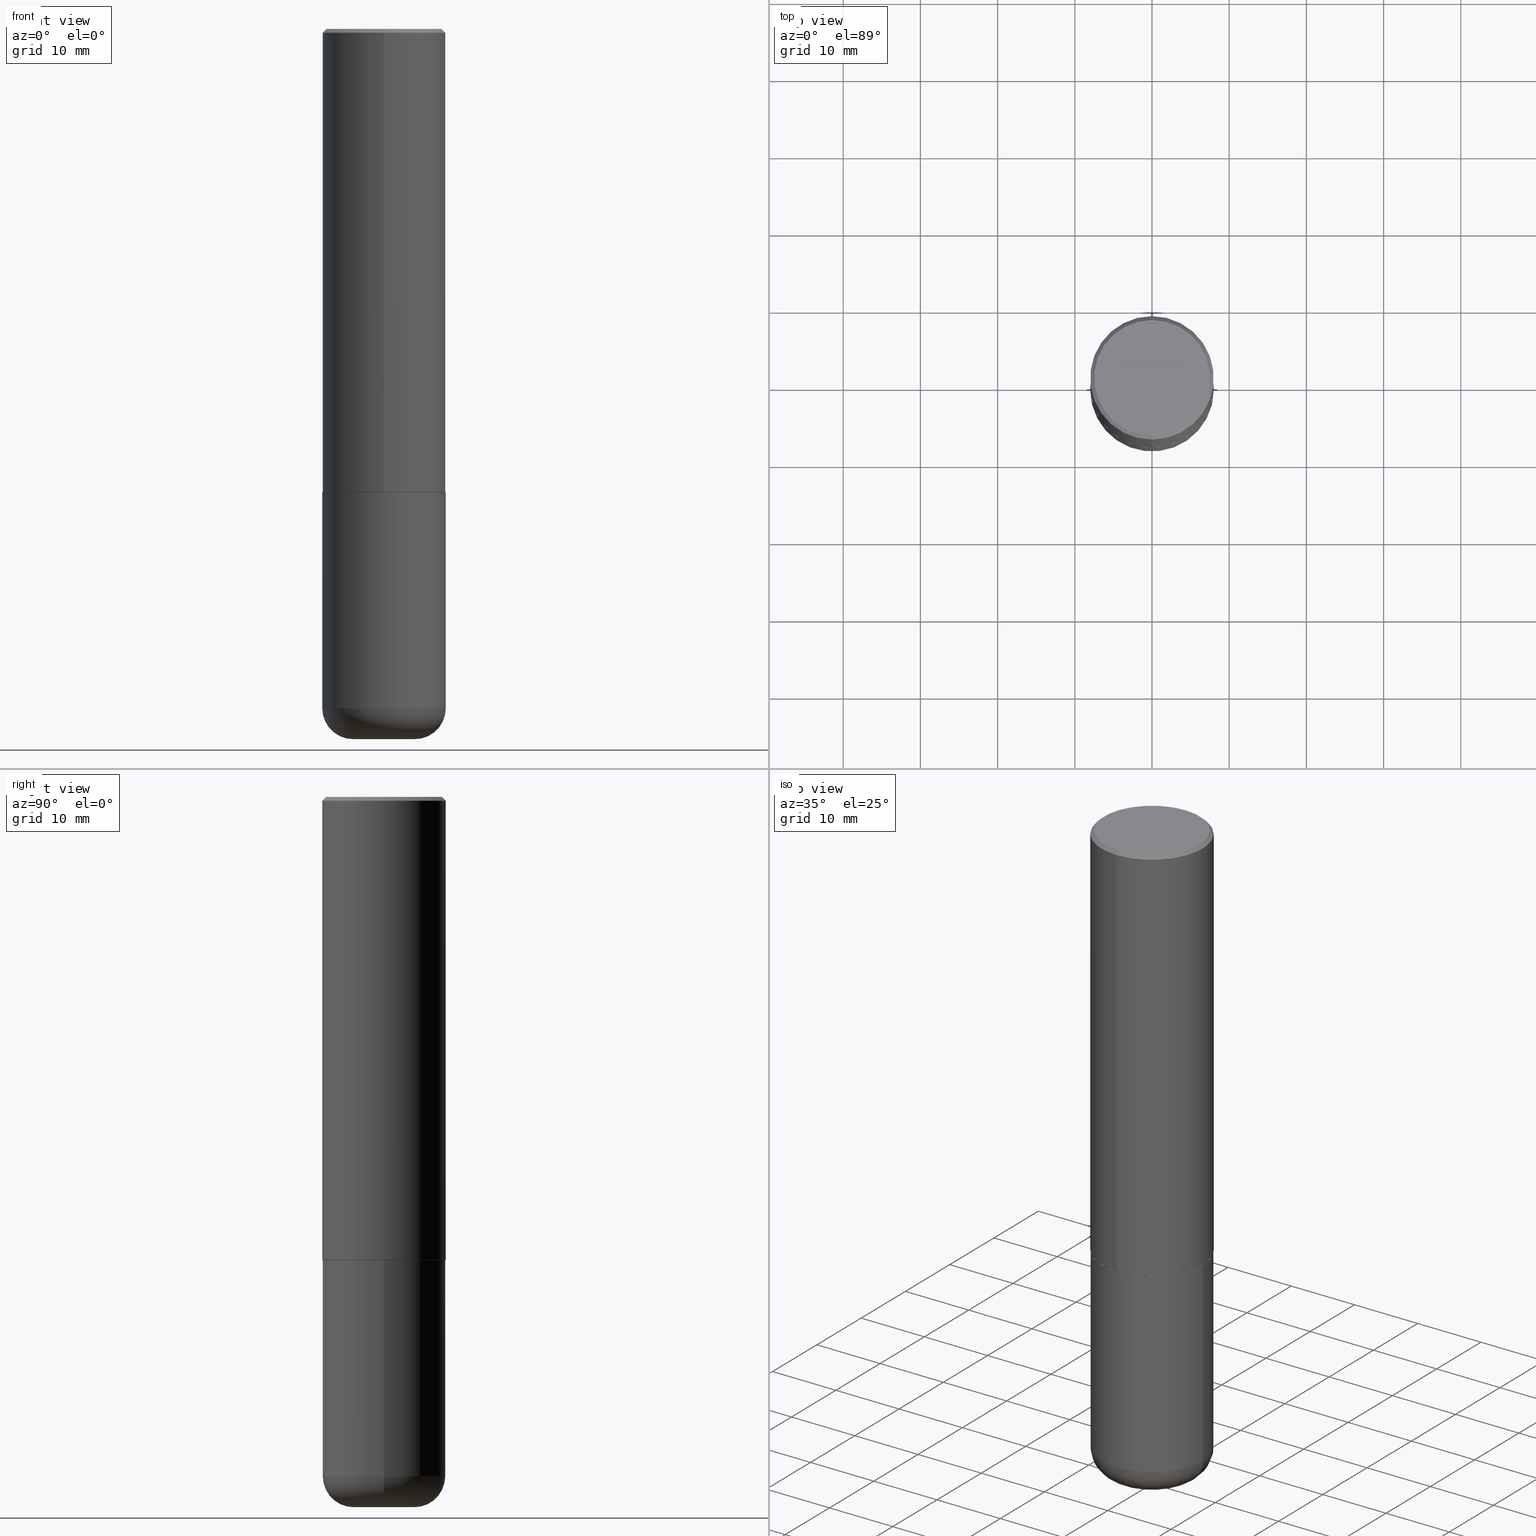
[diagram: canonical four-view strip — front | top / right | iso, engineering-drawing reading convention]
A machine part, canonical four-view strip (front | top / right | iso — engineering-drawing reading convention). The complete STEP part file that produces these views, byte-faithful:
ISO-10303-21;
HEADER;
FILE_DESCRIPTION (( 'STEP AP203' ),
    '1' );
FILE_NAME ('46944.STEP',
    '2024-03-05T09:28:39',
    ( '' ),
    ( '' ),
    'SwSTEP 2.0',
    'SolidWorks 2023',
    '' );
FILE_SCHEMA (( 'CONFIG_CONTROL_DESIGN' ));
ENDSEC;

DATA;
#1 = CARTESIAN_POINT ( 'NONE',  ( 5.783218068833384850E-29, -8.238223517092961718E-15, -2.362199999999999633 ) ) ;
#2 = ORIENTED_EDGE ( 'NONE', *, *, #418, .F. ) ;
#3 = ADVANCED_FACE ( 'NONE', ( #30 ), #95, .T. ) ;
#4 = CARTESIAN_POINT ( 'NONE',  ( -2.199284095337290265E-15, -0.3149500000000001743, 1.098394927063089374E-15 ) ) ;
#5 = AXIS2_PLACEMENT_3D ( 'NONE', #233, #6, #354 ) ;
#6 = DIRECTION ( 'NONE',  ( 0.000000000000000000, 0.000000000000000000, 1.000000000000000000 ) ) ;
#7 = PERSON ( 'UNSPECIFIED', 'UNSPECIFIED', 'UNSPECIFIED', ('UNSPECIFIED'), ('UNSPECIFIED'), ('UNSPECIFIED') ) ;
#8 = CIRCLE ( 'NONE', #331, 0.1574999999999998623 ) ;
#9 = VERTEX_POINT ( 'NONE', #117 ) ;
#10 = APPLICATION_PROTOCOL_DEFINITION ( 'international standard', 'config_control_design', 1994, #246 ) ;
#11 = ORIENTED_EDGE ( 'NONE', *, *, #155, .T. ) ;
#12 = DATE_AND_TIME ( #50, #293 ) ;
#13 = ORIENTED_EDGE ( 'NONE', *, *, #308, .T. ) ;
#14 = ORIENTED_EDGE ( 'NONE', *, *, #219, .T. ) ;
#15 = AXIS2_PLACEMENT_3D ( 'NONE', #61, #403, #91 ) ;
#16 = AXIS2_PLACEMENT_3D ( 'NONE', #289, #230, #66 ) ;
#17 = DIRECTION ( 'NONE',  ( -2.448233878940557644E-29, 3.487521597279215214E-15, 1.000000000000000000 ) ) ;
#18 = DATE_TIME_ROLE ( 'creation_date' ) ;
#19 = ORIENTED_EDGE ( 'NONE', *, *, #174, .F. ) ;
#20 = PERSON_AND_ORGANIZATION ( #7, #333 ) ;
#21 = CC_DESIGN_PERSON_AND_ORGANIZATION_ASSIGNMENT ( #20, #363, ( #355 ) ) ;
#22 = CARTESIAN_POINT ( 'NONE',  ( 0.1574500000000000621, -1.374561288289157201E-14, -3.621999999999999442 ) ) ;
#23 = FACE_OUTER_BOUND ( 'NONE', #163, .T. ) ;
#24 = APPLICATION_CONTEXT ( 'configuration controlled 3d designs of mechanical parts and assemblies' ) ;
#25 = DIRECTION ( 'NONE',  ( 2.448233878940557644E-29, -3.487521597279215214E-15, -1.000000000000000000 ) ) ;
#26 = DIRECTION ( 'NONE',  ( -4.851104656540955597E-15, -0.7071067811865487940, -0.7071067811865461294 ) ) ;
#27 = CALENDAR_DATE ( 2024, 5, 3 ) ;
#28 = AXIS2_PLACEMENT_3D ( 'NONE', #162, #101, #222 ) ;
#29 = AXIS2_PLACEMENT_3D ( 'NONE', #365, #156, #90 ) ;
#30 = FACE_OUTER_BOUND ( 'NONE', #44, .T. ) ;
#31 = APPROVAL_PERSON_ORGANIZATION ( #334, #143, #297 ) ;
#32 = ORIENTED_EDGE ( 'NONE', *, *, #174, .T. ) ;
#33 = LINE ( 'NONE', #352, #148 ) ;
#34 = CARTESIAN_POINT ( 'NONE',  ( 2.129454468560427756E-15, 0.2949500000000002120, -1.277386145317610329E-15 ) ) ;
#35 = CARTESIAN_POINT ( 'NONE',  ( -2.160713844398143363E-15, -0.3149500000000000632, -0.01999999999999900122 ) ) ;
#36 = AXIS2_PLACEMENT_3D ( 'NONE', #273, #17, #212 ) ;
#37 = CONICAL_SURFACE ( 'NONE', #141, 0.3139500000000000068, 0.7853981633974141952 ) ;
#38 = CARTESIAN_POINT ( 'NONE',  ( 2.237854346276465567E-15, 0.3149499999999920141, -2.361200000000000632 ) ) ;
#39 = DIRECTION ( 'NONE',  ( -2.448233878940557644E-29, 3.487521597279215214E-15, 1.000000000000000000 ) ) ;
#40 = LINE ( 'NONE', #344, #263 ) ;
#41 = CC_DESIGN_PERSON_AND_ORGANIZATION_ASSIGNMENT ( #208, #276, ( #264 ) ) ;
#42 = APPROVAL_STATUS ( 'not_yet_approved' ) ;
#43 = DIRECTION ( 'NONE',  ( -2.448233878940557644E-29, 3.487521597279215608E-15, 1.000000000000000000 ) ) ;
#44 = EDGE_LOOP ( 'NONE', ( #220, #139, #379, #299 ) ) ;
#45 = DIRECTION ( 'NONE',  ( -2.448233878940557644E-29, 3.487521597279215214E-15, 1.000000000000000000 ) ) ;
#46 = AXIS2_PLACEMENT_3D ( 'NONE', #59, #303, #194 ) ;
#47 = DATE_AND_TIME ( #366, #168 ) ;
#48 = EDGE_CURVE ( 'NONE', #319, #177, #213, .T. ) ;
#49 = EDGE_LOOP ( 'NONE', ( #94, #382 ) ) ;
#50 = CALENDAR_DATE ( 2024, 5, 3 ) ;
#51 = VERTEX_POINT ( 'NONE', #183 ) ;
#52 = EDGE_CURVE ( 'NONE', #51, #207, #123, .T. ) ;
#53 = FACE_OUTER_BOUND ( 'NONE', #370, .T. ) ;
#54 = PERSON_AND_ORGANIZATION ( #7, #333 ) ;
#55 = PLANE ( 'NONE',  #167 ) ;
#56 = AXIS2_PLACEMENT_3D ( 'NONE', #239, #146, #116 ) ;
#57 = DIRECTION ( 'NONE',  ( -2.445468806185136597E-29, 3.491481338843145583E-15, 1.000000000000000000 ) ) ;
#58 = CC_DESIGN_APPROVAL ( #160, ( #377 ) ) ;
#59 = CARTESIAN_POINT ( 'NONE',  ( 5.776686413970529753E-29, -8.247577218615278049E-15, -2.362199999999999633 ) ) ;
#60 = ADVANCED_FACE ( 'NONE', ( #53 ), #393, .T. ) ;
#61 = CARTESIAN_POINT ( 'NONE',  ( 5.776686413970529753E-29, -8.247577218615278049E-15, -2.362199999999999633 ) ) ;
#62 = ORIENTED_EDGE ( 'NONE', *, *, #286, .T. ) ;
#63 = FACE_OUTER_BOUND ( 'NONE', #96, .T. ) ;
#64 = CIRCLE ( 'NONE', #399, 0.3149500000000000077 ) ;
#65 = APPROVAL_PERSON_ORGANIZATION ( #153, #113, #115 ) ;
#66 = DIRECTION ( 'NONE',  ( 6.982962677686265922E-15, 1.000000000000000000, -3.487521597279215608E-15 ) ) ;
#67 = CARTESIAN_POINT ( 'NONE',  ( 0.3149499999999999522, -1.429552119375937009E-14, -3.464500000000000135 ) ) ;
#68 = DIRECTION ( 'NONE',  ( -2.448233878940556803E-29, 3.487521597279215608E-15, 1.000000000000000000 ) ) ;
#69 = DIRECTION ( 'NONE',  ( 4.937700262164540154E-15, 0.7071067811865440200, -0.7071067811865511255 ) ) ;
#70 = EDGE_CURVE ( 'NONE', #180, #314, #102, .T. ) ;
#71 = DIRECTION ( 'NONE',  ( 1.000000000000000000, -6.982962677686269866E-15, 0.000000000000000000 ) ) ;
#72 = AXIS2_PLACEMENT_3D ( 'NONE', #347, #68, #309 ) ;
#73 = ADVANCED_FACE ( 'NONE', ( #337 ), #86, .T. ) ;
#74 =( CONVERSION_BASED_UNIT ( 'INCH', #351 ) LENGTH_UNIT ( ) NAMED_UNIT ( #251 ) );
#75 = ORIENTED_EDGE ( 'NONE', *, *, #308, .F. ) ;
#76 = APPROVAL_ROLE ( '' ) ;
#77 = LINE ( 'NONE', #104, #385 ) ;
#78 = ORIENTED_EDGE ( 'NONE', *, *, #258, .F. ) ;
#79 = DIRECTION ( 'NONE',  ( -2.448233878940557644E-29, 3.487521597279215214E-15, 1.000000000000000000 ) ) ;
#80 = MECHANICAL_CONTEXT ( 'NONE', #24, 'mechanical' ) ;
#81 = CIRCLE ( 'NONE', #205, 0.3139500000000000068 ) ;
#82 = VERTEX_POINT ( 'NONE', #332 ) ;
#83 = EDGE_CURVE ( 'NONE', #207, #51, #305, .T. ) ;
#84 = PRODUCT_RELATED_PRODUCT_CATEGORY ( 'detail', '', ( #355 ) ) ;
#85 = COORDINATED_UNIVERSAL_TIME_OFFSET ( 5, 0, .BEHIND. ) ;
#86 = TOROIDAL_SURFACE ( 'NONE', #384, 0.1574500000000000066, 0.1574999999999998346 ) ;
#87 = LOCAL_TIME ( 4, 28, 39.00000000000000000, #157 ) ;
#88 = ORIENTED_EDGE ( 'NONE', *, *, #418, .T. ) ;
#89 = CALENDAR_DATE ( 2024, 5, 3 ) ;
#90 = DIRECTION ( 'NONE',  ( -6.982962677686266711E-15, -1.000000000000000000, 3.480615376543096919E-15 ) ) ;
#91 = DIRECTION ( 'NONE',  ( 1.000000000000000000, -6.982962677686266711E-15, 0.000000000000000000 ) ) ;
#92 = COORDINATED_UNIVERSAL_TIME_OFFSET ( 5, 0, .BEHIND. ) ;
#93 = EDGE_CURVE ( 'NONE', #248, #387, #300, .T. ) ;
#94 = ORIENTED_EDGE ( 'NONE', *, *, #406, .F. ) ;
#95 = CYLINDRICAL_SURFACE ( 'NONE', #373, 0.3149500000000001743 ) ;
#96 = EDGE_LOOP ( 'NONE', ( #19, #78 ) ) ;
#97 = AXIS2_PLACEMENT_3D ( 'NONE', #330, #57, #121 ) ;
#98 = CARTESIAN_POINT ( 'NONE',  ( 0.000000000000000000, 0.000000000000000000, 0.000000000000000000 ) ) ;
#99 = SECURITY_CLASSIFICATION_LEVEL ( 'unclassified' ) ;
#100 = ADVANCED_FACE ( 'NONE', ( #231 ), #37, .T. ) ;
#101 = DIRECTION ( 'NONE',  ( -2.445468806185136597E-29, 3.491481338843145583E-15, 1.000000000000000000 ) ) ;
#102 = CIRCLE ( 'NONE', #28, 0.1574500000000000621 ) ;
#103 = VECTOR ( 'NONE', #315, 39.37007874015748854 ) ;
#104 = CARTESIAN_POINT ( 'NONE',  ( -0.3149500000000000077, 2.237854346276435590E-15, -1.549218606675782676E-29 ) ) ;
#105 = ADVANCED_FACE ( 'NONE', ( #311 ), #223, .T. ) ;
#106 = CARTESIAN_POINT ( 'NONE',  ( 5.783218068833384850E-29, -8.238223517092961718E-15, -2.362199999999999633 ) ) ;
#107 = DIRECTION ( 'NONE',  ( -4.937700262164378437E-15, -0.7071067811865208164, 0.7071067811865739960 ) ) ;
#108 = PRODUCT_DEFINITION ( 'UNKNOWN', '', #264, #386 ) ;
#109 = LINE ( 'NONE', #4, #412 ) ;
#110 = DIRECTION ( 'NONE',  ( -2.448233878940557644E-29, 3.487521597279215214E-15, 1.000000000000000000 ) ) ;
#111 = AXIS2_PLACEMENT_3D ( 'NONE', #106, #110, #253 ) ;
#112 = DIRECTION ( 'NONE',  ( -2.445468806185136597E-29, 3.491481338843145583E-15, 1.000000000000000000 ) ) ;
#113 = APPROVAL ( #176, 'UNSPECIFIED' ) ;
#114 = ORIENTED_EDGE ( 'NONE', *, *, #48, .T. ) ;
#115 = APPROVAL_ROLE ( '' ) ;
#116 = DIRECTION ( 'NONE',  ( -6.982962677686264344E-15, -1.000000000000000000, 3.487521597279214819E-15 ) ) ;
#117 = CARTESIAN_POINT ( 'NONE',  ( -0.3149499999999999522, -9.858382752145642660E-15, -3.464500000000000135 ) ) ;
#118 = ORIENTED_EDGE ( 'NONE', *, *, #199, .T. ) ;
#119 = DIRECTION ( 'NONE',  ( -2.445468806185136597E-29, 3.491481338843145583E-15, 1.000000000000000000 ) ) ;
#120 = PERSON_AND_ORGANIZATION_ROLE ( 'classification_officer' ) ;
#121 = DIRECTION ( 'NONE',  ( 1.000000000000000000, -6.982962677686266711E-15, 4.876176775795936353E-29 ) ) ;
#122 = PERSON_AND_ORGANIZATION_ROLE ( 'design_supplier' ) ;
#123 = CIRCLE ( 'NONE', #15, 0.3149500000000000077 ) ;
#124 = CIRCLE ( 'NONE', #306, 0.1574500000000000621 ) ;
#125 = CARTESIAN_POINT ( 'NONE',  ( 2.230748918918891775E-15, 0.3139499999999917357, -2.362200000000000966 ) ) ;
#126 = MANIFOLD_SOLID_BREP ( 'Body-Move/Copy2[1]', #147 ) ;
#127 =( LENGTH_UNIT ( ) NAMED_UNIT ( * ) SI_UNIT ( $, .METRE. ) );
#128 = PLANE ( 'NONE',  #72 ) ;
#129 = FACE_OUTER_BOUND ( 'NONE', #270, .T. ) ;
#130 = CARTESIAN_POINT ( 'NONE',  ( -0.1574500000000000066, -1.097748756096779869E-14, -3.464499999999999691 ) ) ;
#131 = CARTESIAN_POINT ( 'NONE',  ( 4.896467757881138829E-31, -6.975043194558463165E-17, -0.02000000000000009756 ) ) ;
#132 = ADVANCED_FACE ( 'NONE', ( #129 ), #195, .T. ) ;
#133 = FACE_OUTER_BOUND ( 'NONE', #277, .T. ) ;
#134 = DIRECTION ( 'NONE',  ( 1.000000000000000000, -6.982962677686263555E-15, 0.000000000000000000 ) ) ;
#135 = DATE_TIME_ROLE ( 'classification_date' ) ;
#136 = PLANE ( 'NONE',  #188 ) ;
#137 = CARTESIAN_POINT ( 'NONE',  ( 8.472326679028406000E-29, -1.209623709842207864E-14, -3.464500000000000135 ) ) ;
#138 = CIRCLE ( 'NONE', #236, 0.1574999999999998623 ) ;
#139 = ORIENTED_EDGE ( 'NONE', *, *, #360, .T. ) ;
#140 = EDGE_CURVE ( 'NONE', #376, #319, #33, .T. ) ;
#141 = AXIS2_PLACEMENT_3D ( 'NONE', #257, #389, #316 ) ;
#142 = LOCAL_TIME ( 4, 28, 39.00000000000000000, #268 ) ;
#143 = APPROVAL ( #145, 'UNSPECIFIED' ) ;
#144 = ORIENTED_EDGE ( 'NONE', *, *, #52, .F. ) ;
#145 = APPROVAL_STATUS ( 'not_yet_approved' ) ;
#146 = DIRECTION ( 'NONE',  ( -2.448233878940557644E-29, 3.487521597279215214E-15, 1.000000000000000000 ) ) ;
#147 = CLOSED_SHELL ( 'NONE', ( #274, #173, #166, #238, #73, #324 ) ) ;
#148 = VECTOR ( 'NONE', #43, 39.37007874015748143 ) ;
#149 = ORIENTED_EDGE ( 'NONE', *, *, #201, .T. ) ;
#150 = CARTESIAN_POINT ( 'NONE',  ( 8.472326679028403758E-29, -1.209623709842207707E-14, -3.464499999999999691 ) ) ;
#151 = DIRECTION ( 'NONE',  ( -1.000000000000000000, 6.982962677686265922E-15, -4.876176775795935793E-29 ) ) ;
#152 = ORIENTED_EDGE ( 'NONE', *, *, #406, .T. ) ;
#153 = PERSON_AND_ORGANIZATION ( #7, #333 ) ;
#154 = VERTEX_POINT ( 'NONE', #67 ) ;
#155 = EDGE_CURVE ( 'NONE', #9, #51, #77, .T. ) ;
#156 = DIRECTION ( 'NONE',  ( -2.448233878940557644E-29, 3.487521597279215214E-15, 1.000000000000000000 ) ) ;
#157 = COORDINATED_UNIVERSAL_TIME_OFFSET ( 5, 0, .BEHIND. ) ;
#158 = CLOSED_SHELL ( 'NONE', ( #105, #244, #132, #60, #3, #100, #374, #304 ) ) ;
#159 = CARTESIAN_POINT ( 'NONE',  ( 1.763420366260908585E-28, -7.738906371736917022E-17, -3.621999999999999886 ) ) ;
#160 = APPROVAL ( #42, 'UNSPECIFIED' ) ;
#161 = CARTESIAN_POINT ( 'NONE',  ( -2.192301132659545875E-15, -0.3139500000000082780, -2.362199999999998745 ) ) ;
#162 = CARTESIAN_POINT ( 'NONE',  ( 8.857488016002563354E-29, -1.264614540928987041E-14, -3.621999999999999442 ) ) ;
#163 = EDGE_LOOP ( 'NONE', ( #197, #217, #210, #310 ) ) ;
#164 = DIRECTION ( 'NONE',  ( -2.448233878940557644E-29, 3.487521597279215214E-15, 1.000000000000000000 ) ) ;
#165 = DIRECTION ( 'NONE',  ( 1.000000000000000000, -6.982962677686268288E-15, 0.000000000000000000 ) ) ;
#166 = ADVANCED_FACE ( 'NONE', ( #133 ), #136, .F. ) ;
#167 = AXIS2_PLACEMENT_3D ( 'NONE', #159, #371, #151 ) ;
#168 = LOCAL_TIME ( 4, 28, 39.00000000000000000, #85 ) ;
#169 = CARTESIAN_POINT ( 'NONE',  ( 6.089777351234785307E-45, -8.674918772157382389E-31, -2.487416502001050444E-16 ) ) ;
#170 = DIRECTION ( 'NONE',  ( -2.448233878940557644E-29, 3.487521597279215608E-15, 1.000000000000000000 ) ) ;
#171 = PLANE ( 'NONE',  #16 ) ;
#172 = DIRECTION ( 'NONE',  ( 1.000000000000000000, -6.982962677686266711E-15, 4.883557194083112901E-29 ) ) ;
#173 = ADVANCED_FACE ( 'NONE', ( #226 ), #175, .T. ) ;
#174 = EDGE_CURVE ( 'NONE', #272, #82, #81, .T. ) ;
#175 = TOROIDAL_SURFACE ( 'NONE', #267, 0.1574500000000000066, 0.1574999999999998346 ) ;
#176 = APPROVAL_STATUS ( 'not_yet_approved' ) ;
#177 = VERTEX_POINT ( 'NONE', #35 ) ;
#178 = APPROVAL_DATE_TIME ( #12, #113 ) ;
#179 = ORIENTED_EDGE ( 'NONE', *, *, #199, .F. ) ;
#180 = VERTEX_POINT ( 'NONE', #390 ) ;
#181 = AXIS2_PLACEMENT_3D ( 'NONE', #137, #349, #71 ) ;
#182 = ORIENTED_EDGE ( 'NONE', *, *, #52, .T. ) ;
#183 = CARTESIAN_POINT ( 'NONE',  ( -0.3149500000000000077, -7.934052812242242362E-15, -2.362199999999999633 ) ) ;
#184 = EDGE_CURVE ( 'NONE', #241, #177, #109, .T. ) ;
#185 = EDGE_LOOP ( 'NONE', ( #152, #13, #240, #372 ) ) ;
#186 = CC_DESIGN_DATE_AND_TIME_ASSIGNMENT ( #47, #18, ( #108 ) ) ;
#187 = AXIS2_PLACEMENT_3D ( 'NONE', #216, #404, #307 ) ;
#188 = AXIS2_PLACEMENT_3D ( 'NONE', #198, #284, #290 ) ;
#189 = CARTESIAN_POINT ( 'NONE',  ( 4.896467757881138829E-31, -6.975043194558463165E-17, -0.02000000000000009756 ) ) ;
#190 = UNCERTAINTY_MEASURE_WITH_UNIT (LENGTH_MEASURE( 1.000000000000000082E-05 ), #74, 'distance_accuracy_value', 'NONE');
#191 = CARTESIAN_POINT ( 'NONE',  ( 6.089777351234785307E-45, -8.674918772157382389E-31, -2.487416502001050444E-16 ) ) ;
#192 = APPROVAL_DATE_TIME ( #317, #160 ) ;
#193 = ORIENTED_EDGE ( 'NONE', *, *, #258, .T. ) ;
#194 = DIRECTION ( 'NONE',  ( 1.000000000000000000, -6.982962677686266711E-15, 0.000000000000000000 ) ) ;
#195 = CONICAL_SURFACE ( 'NONE', #357, 0.3149500000000000077, 0.7853981633974467247 ) ;
#196 = LINE ( 'NONE', #353, #350 ) ;
#197 = ORIENTED_EDGE ( 'NONE', *, *, #397, .T. ) ;
#198 = CARTESIAN_POINT ( 'NONE',  ( 5.776686413970529753E-29, -8.247577218615278049E-15, -2.362199999999999633 ) ) ;
#199 = EDGE_CURVE ( 'NONE', #9, #154, #325, .T. ) ;
#200 = DIRECTION ( 'NONE',  ( 6.982962677686265922E-15, 1.000000000000000000, -3.483117034309591132E-15 ) ) ;
#201 = EDGE_CURVE ( 'NONE', #314, #154, #138, .T. ) ;
#202 = AXIS2_PLACEMENT_3D ( 'NONE', #131, #45, #281 ) ;
#203 = EDGE_CURVE ( 'NONE', #154, #9, #64, .T. ) ;
#204 = AXIS2_PLACEMENT_3D ( 'NONE', #189, #25, #328 ) ;
#205 = AXIS2_PLACEMENT_3D ( 'NONE', #1, #39, #260 ) ;
#206 = PERSON_AND_ORGANIZATION ( #7, #333 ) ;
#207 = VERTEX_POINT ( 'NONE', #392 ) ;
#208 = PERSON_AND_ORGANIZATION ( #7, #333 ) ;
#209 = CARTESIAN_POINT ( 'NONE',  ( -2.092108864420429214E-15, -0.2949500000000002120, 7.799028449174000434E-16 ) ) ;
#210 = ORIENTED_EDGE ( 'NONE', *, *, #221, .F. ) ;
#211 = EDGE_CURVE ( 'NONE', #154, #207, #196, .T. ) ;
#212 = DIRECTION ( 'NONE',  ( -6.982962677686265922E-15, -1.000000000000000000, 3.483117034309591132E-15 ) ) ;
#213 = CIRCLE ( 'NONE', #36, 0.3149500000000000077 ) ;
#214 = CIRCLE ( 'NONE', #407, 0.2949500000000002120 ) ;
#215 = ORIENTED_EDGE ( 'NONE', *, *, #221, .T. ) ;
#216 = CARTESIAN_POINT ( 'NONE',  ( 5.780769834954442662E-29, -8.234735995495680854E-15, -2.361199999999999299 ) ) ;
#217 = ORIENTED_EDGE ( 'NONE', *, *, #140, .T. ) ;
#218 = DIRECTION ( 'NONE',  ( -6.982962677686264344E-15, -1.000000000000000000, 3.487521597279214819E-15 ) ) ;
#219 = EDGE_CURVE ( 'NONE', #387, #319, #411, .T. ) ;
#220 = ORIENTED_EDGE ( 'NONE', *, *, #140, .F. ) ;
#221 = EDGE_CURVE ( 'NONE', #177, #319, #341, .T. ) ;
#222 = DIRECTION ( 'NONE',  ( 1.000000000000000000, -6.982962677686263555E-15, 0.000000000000000000 ) ) ;
#223 = CONICAL_SURFACE ( 'NONE', #111, 0.3139500000000000068, 0.7853981633974141952 ) ;
#224 = DIRECTION ( 'NONE',  ( -6.982962677686265922E-15, -1.000000000000000000, 3.469564049740290009E-15 ) ) ;
#225 = CC_DESIGN_APPROVAL ( #143, ( #108 ) ) ;
#226 = FACE_OUTER_BOUND ( 'NONE', #185, .T. ) ;
#227 = DIRECTION ( 'NONE',  ( -2.445468806185136597E-29, 3.491481338843145583E-15, 1.000000000000000000 ) ) ;
#228 = DIRECTION ( 'NONE',  ( 2.448233878940557644E-29, -3.487521597279215214E-15, -1.000000000000000000 ) ) ;
#229 = ORIENTED_EDGE ( 'NONE', *, *, #219, .F. ) ;
#230 = DIRECTION ( 'NONE',  ( 2.448233878940556803E-29, -3.487521597279215608E-15, -1.000000000000000000 ) ) ;
#231 = FACE_OUTER_BOUND ( 'NONE', #298, .T. ) ;
#232 = CC_DESIGN_DATE_AND_TIME_ASSIGNMENT ( #320, #135, ( #377 ) ) ;
#233 = CARTESIAN_POINT ( 'NONE',  ( 0.000000000000000000, 0.000000000000000000, 0.000000000000000000 ) ) ;
#234 = ORIENTED_EDGE ( 'NONE', *, *, #70, .T. ) ;
#235 = COORDINATED_UNIVERSAL_TIME_OFFSET ( 5, 0, .BEHIND. ) ;
#236 = AXIS2_PLACEMENT_3D ( 'NONE', #343, #262, #165 ) ;
#237 = APPROVAL_DATE_TIME ( #329, #143 ) ;
#238 = ADVANCED_FACE ( 'NONE', ( #410 ), #266, .T. ) ;
#239 = CARTESIAN_POINT ( 'NONE',  ( 0.000000000000000000, 0.000000000000000000, 0.000000000000000000 ) ) ;
#240 = ORIENTED_EDGE ( 'NONE', *, *, #203, .F. ) ;
#241 = VERTEX_POINT ( 'NONE', #409 ) ;
#242 = ORIENTED_EDGE ( 'NONE', *, *, #83, .F. ) ;
#243 = DIRECTION ( 'NONE',  ( 1.000000000000000000, -6.982962677686266711E-15, 4.883557194083112901E-29 ) ) ;
#244 = ADVANCED_FACE ( 'NONE', ( #23 ), #381, .T. ) ;
#245 = LINE ( 'NONE', #125, #103 ) ;
#246 = APPLICATION_CONTEXT ( 'configuration controlled 3d designs of mechanical parts and assemblies' ) ;
#247 = CIRCLE ( 'NONE', #187, 0.3149500000000002853 ) ;
#248 = VERTEX_POINT ( 'NONE', #209 ) ;
#249 = MANIFOLD_SOLID_BREP ( 'Body-Move/Copy2[2]', #158 ) ;
#250 = DIRECTION ( 'NONE',  ( -2.448233878940557644E-29, 3.487521597279215214E-15, 1.000000000000000000 ) ) ;
#251 = DIMENSIONAL_EXPONENTS ( 1.000000000000000000, 0.000000000000000000, 0.000000000000000000, 0.000000000000000000, 0.000000000000000000, 0.000000000000000000, 0.000000000000000000 ) ;
#252 = FACE_OUTER_BOUND ( 'NONE', #283, .T. ) ;
#253 = DIRECTION ( 'NONE',  ( -6.982962677686266711E-15, -1.000000000000000000, 3.480615376543096919E-15 ) ) ;
#254 = VECTOR ( 'NONE', #26, 39.37007874015748854 ) ;
#255 = EDGE_LOOP ( 'NONE', ( #75, #234, #149, #179 ) ) ;
#256 = DIRECTION ( 'NONE',  ( 7.105427357601001859E-15, 1.000000000000000000, -3.491481338843145583E-15 ) ) ;
#257 = CARTESIAN_POINT ( 'NONE',  ( 5.783218068833384850E-29, -8.238223517092961718E-15, -2.362199999999999633 ) ) ;
#258 = EDGE_CURVE ( 'NONE', #82, #272, #280, .T. ) ;
#259 = CARTESIAN_POINT ( 'NONE',  ( -2.160713844398143363E-15, -0.3149500000000000632, -0.01999999999999900122 ) ) ;
#260 = DIRECTION ( 'NONE',  ( -6.982962677686266711E-15, -1.000000000000000000, 3.480615376543096919E-15 ) ) ;
#261 = CC_DESIGN_PERSON_AND_ORGANIZATION_ASSIGNMENT ( #338, #327, ( #108 ) ) ;
#262 = DIRECTION ( 'NONE',  ( -6.982962677686266711E-15, -1.000000000000000000, 3.491481338843145583E-15 ) ) ;
#263 = VECTOR ( 'NONE', #107, 39.37007874015748854 ) ;
#264 = PRODUCT_DEFINITION_FORMATION_WITH_SPECIFIED_SOURCE ( 'ANY', '', #355, .NOT_KNOWN. ) ;
#265 = DIRECTION ( 'NONE',  ( -2.445468806185136877E-29, 3.491481338843145188E-15, 1.000000000000000000 ) ) ;
#266 = CYLINDRICAL_SURFACE ( 'NONE', #375, 0.3149500000000000077 ) ;
#267 = AXIS2_PLACEMENT_3D ( 'NONE', #318, #227, #172 ) ;
#268 = COORDINATED_UNIVERSAL_TIME_OFFSET ( 5, 0, .BEHIND. ) ;
#269 = CARTESIAN_POINT ( 'NONE',  ( 2.199284095337289871E-15, 0.3149499999999999522, -0.02000000000000119391 ) ) ;
#270 = EDGE_LOOP ( 'NONE', ( #335, #400, #215, #229 ) ) ;
#271 = CARTESIAN_POINT ( 'NONE',  ( 0.000000000000000000, 0.000000000000000000, 0.000000000000000000 ) ) ;
#272 = VERTEX_POINT ( 'NONE', #161 ) ;
#273 = CARTESIAN_POINT ( 'NONE',  ( 4.896467757881138829E-31, -6.975043194558463165E-17, -0.02000000000000009756 ) ) ;
#274 = ADVANCED_FACE ( 'NONE', ( #278 ), #367, .T. ) ;
#275 = ORIENTED_EDGE ( 'NONE', *, *, #364, .T. ) ;
#276 = PERSON_AND_ORGANIZATION_ROLE ( 'creator' ) ;
#277 = EDGE_LOOP ( 'NONE', ( #302, #182 ) ) ;
#278 = FACE_OUTER_BOUND ( 'NONE', #368, .T. ) ;
#279 = ORIENTED_EDGE ( 'NONE', *, *, #360, .F. ) ;
#280 = CIRCLE ( 'NONE', #29, 0.3139500000000000068 ) ;
#281 = DIRECTION ( 'NONE',  ( -6.982962677686265922E-15, -1.000000000000000000, 3.483117034309591132E-15 ) ) ;
#282 = DIRECTION ( 'NONE',  ( -2.445468806185136877E-29, 3.491481338843145188E-15, 1.000000000000000000 ) ) ;
#283 = EDGE_LOOP ( 'NONE', ( #88, #348 ) ) ;
#284 = DIRECTION ( 'NONE',  ( 2.438088387897960049E-29, -3.491481338843145188E-15, -1.000000000000000000 ) ) ;
#285 = DIRECTION ( 'NONE',  ( -2.445468806185136597E-29, 3.491481338843145583E-15, 1.000000000000000000 ) ) ;
#286 = EDGE_CURVE ( 'NONE', #82, #376, #245, .T. ) ;
#287 = SHAPE_DEFINITION_REPRESENTATION ( #294, #359 ) ;
#288 = ORIENTED_EDGE ( 'NONE', *, *, #364, .F. ) ;
#289 = CARTESIAN_POINT ( 'NONE',  ( 2.059624841783565641E-15, 0.2949500000000002120, -1.153015320217557783E-15 ) ) ;
#290 = DIRECTION ( 'NONE',  ( -1.000000000000000000, 6.982962677686265922E-15, -4.876176775795935793E-29 ) ) ;
#291 =( NAMED_UNIT ( * ) PLANE_ANGLE_UNIT ( ) SI_UNIT ( $, .RADIAN. ) );
#292 = VECTOR ( 'NONE', #69, 39.37007874015748143 ) ;
#293 = LOCAL_TIME ( 4, 28, 39.00000000000000000, #92 ) ;
#294 = PRODUCT_DEFINITION_SHAPE ( 'NONE', 'NONE',  #108 ) ;
#295 = CIRCLE ( 'NONE', #396, 0.3149500000000002853 ) ;
#296 = CC_DESIGN_PERSON_AND_ORGANIZATION_ASSIGNMENT ( #206, #120, ( #377 ) ) ;
#297 = APPROVAL_ROLE ( '' ) ;
#298 = EDGE_LOOP ( 'NONE', ( #362, #193, #275, #279 ) ) ;
#299 = ORIENTED_EDGE ( 'NONE', *, *, #48, .F. ) ;
#300 = CIRCLE ( 'NONE', #313, 0.2949500000000002120 ) ;
#301 = ORIENTED_EDGE ( 'NONE', *, *, #312, .F. ) ;
#302 = ORIENTED_EDGE ( 'NONE', *, *, #83, .T. ) ;
#303 = DIRECTION ( 'NONE',  ( -2.445468806185136597E-29, 3.491481338843145583E-15, 1.000000000000000000 ) ) ;
#304 = ADVANCED_FACE ( 'NONE', ( #252 ), #171, .F. ) ;
#305 = CIRCLE ( 'NONE', #46, 0.3149500000000000077 ) ;
#306 = AXIS2_PLACEMENT_3D ( 'NONE', #413, #285, #134 ) ;
#307 = DIRECTION ( 'NONE',  ( -6.982962677686265922E-15, -1.000000000000000000, 3.469564049740290009E-15 ) ) ;
#308 = EDGE_CURVE ( 'NONE', #180, #9, #8, .T. ) ;
#309 = DIRECTION ( 'NONE',  ( -6.982962677686265922E-15, -1.000000000000000000, 3.487521597279215608E-15 ) ) ;
#310 = ORIENTED_EDGE ( 'NONE', *, *, #184, .F. ) ;
#311 = FACE_OUTER_BOUND ( 'NONE', #417, .T. ) ;
#312 = EDGE_CURVE ( 'NONE', #248, #177, #414, .T. ) ;
#313 = AXIS2_PLACEMENT_3D ( 'NONE', #169, #79, #415 ) ;
#314 = VERTEX_POINT ( 'NONE', #22 ) ;
#315 = DIRECTION ( 'NONE',  ( 5.024295867787889629E-15, 0.7071067811865257013, 0.7071067811865691111 ) ) ;
#316 = DIRECTION ( 'NONE',  ( -6.982962677686266711E-15, -1.000000000000000000, 3.480615376543096919E-15 ) ) ;
#317 = DATE_AND_TIME ( #323, #342 ) ;
#318 = CARTESIAN_POINT ( 'NONE',  ( 8.472326679028403758E-29, -1.209623709842207707E-14, -3.464499999999999691 ) ) ;
#319 = VERTEX_POINT ( 'NONE', #269 ) ;
#320 = DATE_AND_TIME ( #27, #87 ) ;
#321 = CARTESIAN_POINT ( 'NONE',  ( 2.199284095337289871E-15, 0.3149499999999999522, -0.02000000000000119391 ) ) ;
#322 =( NAMED_UNIT ( * ) SI_UNIT ( $, .STERADIAN. ) SOLID_ANGLE_UNIT ( ) );
#323 = CALENDAR_DATE ( 2024, 5, 3 ) ;
#324 = ADVANCED_FACE ( 'NONE', ( #378 ), #55, .T. ) ;
#325 = CIRCLE ( 'NONE', #181, 0.3149500000000000077 ) ;
#326 = APPROVAL_PERSON_ORGANIZATION ( #345, #160, #76 ) ;
#327 = PERSON_AND_ORGANIZATION_ROLE ( 'creator' ) ;
#328 = DIRECTION ( 'NONE',  ( 6.982962677686265922E-15, 1.000000000000000000, -3.483117034309591132E-15 ) ) ;
#329 = DATE_AND_TIME ( #89, #142 ) ;
#330 = CARTESIAN_POINT ( 'NONE',  ( 0.000000000000000000, 0.000000000000000000, 0.000000000000000000 ) ) ;
#331 = AXIS2_PLACEMENT_3D ( 'NONE', #130, #256, #388 ) ;
#332 = CARTESIAN_POINT ( 'NONE',  ( 2.234301632597693067E-15, 0.3139499999999917357, -2.362200000000000966 ) ) ;
#333 = ORGANIZATION ( 'UNSPECIFIED', 'UNSPECIFIED', '' ) ;
#334 = PERSON_AND_ORGANIZATION ( #7, #333 ) ;
#335 = ORIENTED_EDGE ( 'NONE', *, *, #93, .F. ) ;
#336 = DIRECTION ( 'NONE',  ( 1.000000000000000000, -6.982962677686266711E-15, 4.876176775795936353E-29 ) ) ;
#337 = FACE_OUTER_BOUND ( 'NONE', #255, .T. ) ;
#338 = PERSON_AND_ORGANIZATION ( #7, #333 ) ;
#339 = ORIENTED_EDGE ( 'NONE', *, *, #211, .F. ) ;
#340 = DIRECTION ( 'NONE',  ( -2.448233878940557644E-29, 3.487521597279215214E-15, 1.000000000000000000 ) ) ;
#341 = CIRCLE ( 'NONE', #202, 0.3149500000000000077 ) ;
#342 = LOCAL_TIME ( 4, 28, 39.00000000000000000, #235 ) ;
#343 = CARTESIAN_POINT ( 'NONE',  ( 0.1574500000000000066, -1.319570457202378025E-14, -3.464499999999999691 ) ) ;
#344 = CARTESIAN_POINT ( 'NONE',  ( -2.192301132659545875E-15, -0.3139500000000082780, -2.362199999999998745 ) ) ;
#345 = PERSON_AND_ORGANIZATION ( #7, #333 ) ;
#346 = DIRECTION ( 'NONE',  ( 1.000000000000000000, -6.982962677686269866E-15, 0.000000000000000000 ) ) ;
#347 = CARTESIAN_POINT ( 'NONE',  ( 5.783218068833384850E-29, -8.238223517092961718E-15, -2.362199999999999633 ) ) ;
#348 = ORIENTED_EDGE ( 'NONE', *, *, #93, .T. ) ;
#349 = DIRECTION ( 'NONE',  ( -2.445468806185136597E-29, 3.491481338843145583E-15, 1.000000000000000000 ) ) ;
#350 = VECTOR ( 'NONE', #282, 39.37007874015748143 ) ;
#351 = LENGTH_MEASURE_WITH_UNIT ( LENGTH_MEASURE( 0.02539999999999999897 ), #127 );
#352 = CARTESIAN_POINT ( 'NONE',  ( 2.237854346276435985E-15, 0.3149500000000001743, -1.098394927063089374E-15 ) ) ;
#353 = CARTESIAN_POINT ( 'NONE',  ( 0.3149500000000000077, -2.199284095337289871E-15, 1.535751875536930130E-29 ) ) ;
#354 = DIRECTION ( 'NONE',  ( 1.000000000000000000, 0.000000000000000000, 0.000000000000000000 ) ) ;
#355 = PRODUCT ( '46944', '46944', '', ( #80 ) ) ;
#356 = APPLICATION_PROTOCOL_DEFINITION ( 'international standard', 'config_control_design', 1994, #24 ) ;
#357 = AXIS2_PLACEMENT_3D ( 'NONE', #383, #228, #200 ) ;
#358 = CC_DESIGN_APPROVAL ( #113, ( #264 ) ) ;
#359 = ADVANCED_BREP_SHAPE_REPRESENTATION ( '46944', ( #126, #249, #5 ), #361 ) ;
#360 = EDGE_CURVE ( 'NONE', #376, #241, #247, .T. ) ;
#361 =( GEOMETRIC_REPRESENTATION_CONTEXT ( 3 ) GLOBAL_UNCERTAINTY_ASSIGNED_CONTEXT ( ( #190 ) ) GLOBAL_UNIT_ASSIGNED_CONTEXT ( ( #74, #291, #322 ) ) REPRESENTATION_CONTEXT ( 'NONE', 'WORKASPACE' ) );
#362 = ORIENTED_EDGE ( 'NONE', *, *, #286, .F. ) ;
#363 = PERSON_AND_ORGANIZATION_ROLE ( 'design_owner' ) ;
#364 = EDGE_CURVE ( 'NONE', #272, #241, #40, .T. ) ;
#365 = CARTESIAN_POINT ( 'NONE',  ( 5.783218068833384850E-29, -8.238223517092961718E-15, -2.362199999999999633 ) ) ;
#366 = CALENDAR_DATE ( 2024, 5, 3 ) ;
#367 = CYLINDRICAL_SURFACE ( 'NONE', #97, 0.3149500000000000077 ) ;
#368 = EDGE_LOOP ( 'NONE', ( #398, #11, #242, #339 ) ) ;
#369 = ORIENTED_EDGE ( 'NONE', *, *, #211, .T. ) ;
#370 = EDGE_LOOP ( 'NONE', ( #301, #2, #14, #114 ) ) ;
#371 = DIRECTION ( 'NONE',  ( 2.438088387897960049E-29, -3.491481338843145188E-15, -1.000000000000000000 ) ) ;
#372 = ORIENTED_EDGE ( 'NONE', *, *, #201, .F. ) ;
#373 = AXIS2_PLACEMENT_3D ( 'NONE', #98, #340, #218 ) ;
#374 = ADVANCED_FACE ( 'NONE', ( #63 ), #128, .F. ) ;
#375 = AXIS2_PLACEMENT_3D ( 'NONE', #271, #402, #336 ) ;
#376 = VERTEX_POINT ( 'NONE', #38 ) ;
#377 = SECURITY_CLASSIFICATION ( '', '', #99 ) ;
#378 = FACE_OUTER_BOUND ( 'NONE', #49, .T. ) ;
#379 = ORIENTED_EDGE ( 'NONE', *, *, #184, .T. ) ;
#380 = CC_DESIGN_PERSON_AND_ORGANIZATION_ASSIGNMENT ( #54, #122, ( #264 ) ) ;
#381 = CYLINDRICAL_SURFACE ( 'NONE', #56, 0.3149500000000001743 ) ;
#382 = ORIENTED_EDGE ( 'NONE', *, *, #70, .F. ) ;
#383 = CARTESIAN_POINT ( 'NONE',  ( 4.896467757881138829E-31, -6.975043194558463165E-17, -0.02000000000000009756 ) ) ;
#384 = AXIS2_PLACEMENT_3D ( 'NONE', #150, #119, #243 ) ;
#385 = VECTOR ( 'NONE', #265, 39.37007874015748143 ) ;
#386 = DESIGN_CONTEXT ( 'detailed design', #246, 'design' ) ;
#387 = VERTEX_POINT ( 'NONE', #34 ) ;
#388 = DIRECTION ( 'NONE',  ( -1.000000000000000000, 7.105427357601003436E-15, 0.000000000000000000 ) ) ;
#389 = DIRECTION ( 'NONE',  ( -2.448233878940557644E-29, 3.487521597279215214E-15, 1.000000000000000000 ) ) ;
#390 = CARTESIAN_POINT ( 'NONE',  ( -0.1574500000000000621, -1.069288931199061971E-14, -3.621999999999999442 ) ) ;
#391 = CARTESIAN_POINT ( 'NONE',  ( 5.780769834954442662E-29, -8.234735995495680854E-15, -2.361199999999999299 ) ) ;
#392 = CARTESIAN_POINT ( 'NONE',  ( 0.3149500000000000077, -1.044686131395256792E-14, -2.362199999999999633 ) ) ;
#393 = CONICAL_SURFACE ( 'NONE', #204, 0.3149500000000000077, 0.7853981633974467247 ) ;
#394 = CC_DESIGN_SECURITY_CLASSIFICATION ( #377, ( #264 ) ) ;
#395 = CARTESIAN_POINT ( 'NONE',  ( 8.472326679028406000E-29, -1.209623709842207864E-14, -3.464500000000000135 ) ) ;
#396 = AXIS2_PLACEMENT_3D ( 'NONE', #391, #250, #224 ) ;
#397 = EDGE_CURVE ( 'NONE', #241, #376, #295, .T. ) ;
#398 = ORIENTED_EDGE ( 'NONE', *, *, #203, .T. ) ;
#399 = AXIS2_PLACEMENT_3D ( 'NONE', #395, #112, #346 ) ;
#400 = ORIENTED_EDGE ( 'NONE', *, *, #312, .T. ) ;
#401 = EDGE_LOOP ( 'NONE', ( #408, #118, #369, #144 ) ) ;
#402 = DIRECTION ( 'NONE',  ( -2.445468806185136597E-29, 3.491481338843145583E-15, 1.000000000000000000 ) ) ;
#403 = DIRECTION ( 'NONE',  ( -2.445468806185136597E-29, 3.491481338843145583E-15, 1.000000000000000000 ) ) ;
#404 = DIRECTION ( 'NONE',  ( -2.448233878940557644E-29, 3.487521597279215214E-15, 1.000000000000000000 ) ) ;
#405 = ORIENTED_EDGE ( 'NONE', *, *, #397, .F. ) ;
#406 = EDGE_CURVE ( 'NONE', #314, #180, #124, .T. ) ;
#407 = AXIS2_PLACEMENT_3D ( 'NONE', #191, #164, #416 ) ;
#408 = ORIENTED_EDGE ( 'NONE', *, *, #155, .F. ) ;
#409 = CARTESIAN_POINT ( 'NONE',  ( -2.199284095337233467E-15, -0.3149500000000085564, -2.361199999999998411 ) ) ;
#410 = FACE_OUTER_BOUND ( 'NONE', #401, .T. ) ;
#411 = LINE ( 'NONE', #321, #292 ) ;
#412 = VECTOR ( 'NONE', #170, 39.37007874015748143 ) ;
#413 = CARTESIAN_POINT ( 'NONE',  ( 8.857488016002563354E-29, -1.264614540928987041E-14, -3.621999999999999442 ) ) ;
#414 = LINE ( 'NONE', #259, #254 ) ;
#415 = DIRECTION ( 'NONE',  ( -6.982962677686265922E-15, -1.000000000000000000, 3.487521597279215608E-15 ) ) ;
#416 = DIRECTION ( 'NONE',  ( -6.982962677686265922E-15, -1.000000000000000000, 3.487521597279215608E-15 ) ) ;
#417 = EDGE_LOOP ( 'NONE', ( #32, #62, #405, #288 ) ) ;
#418 = EDGE_CURVE ( 'NONE', #387, #248, #214, .T. ) ;
ENDSEC;
END-ISO-10303-21;
